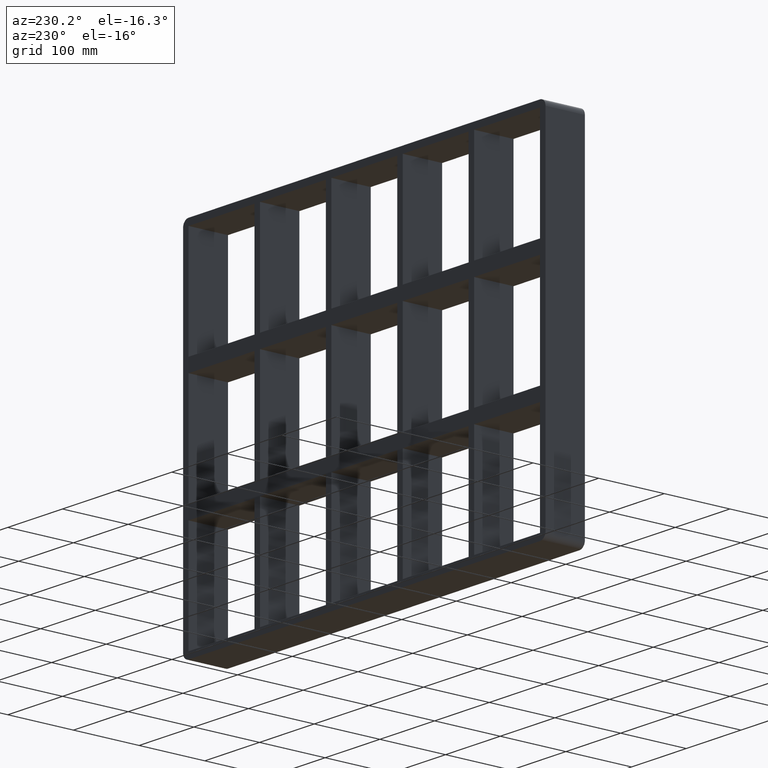
[diagram: clean part render]
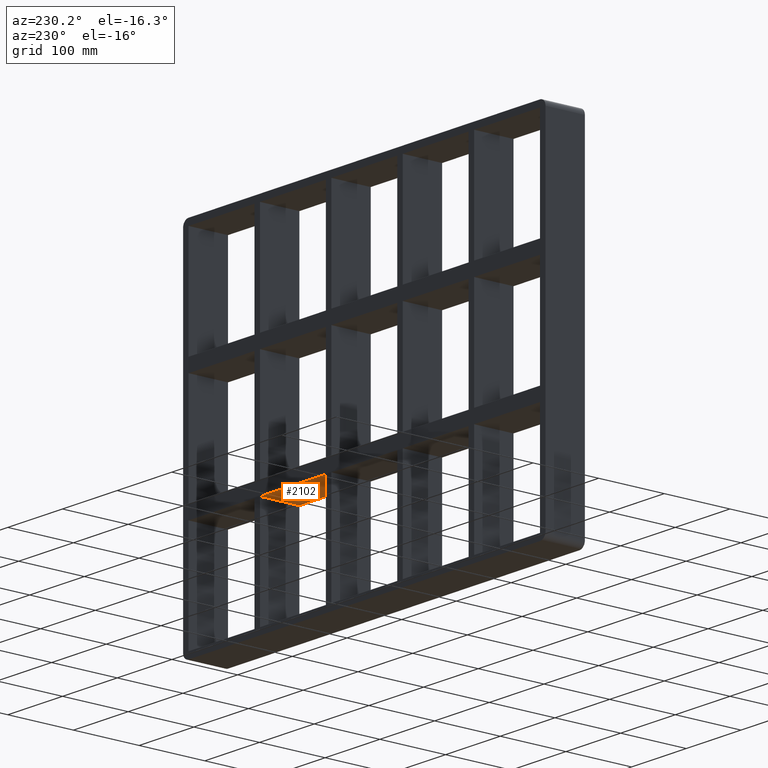
[diagram: same view with one face highlighted and labeled with its STEP entity id]
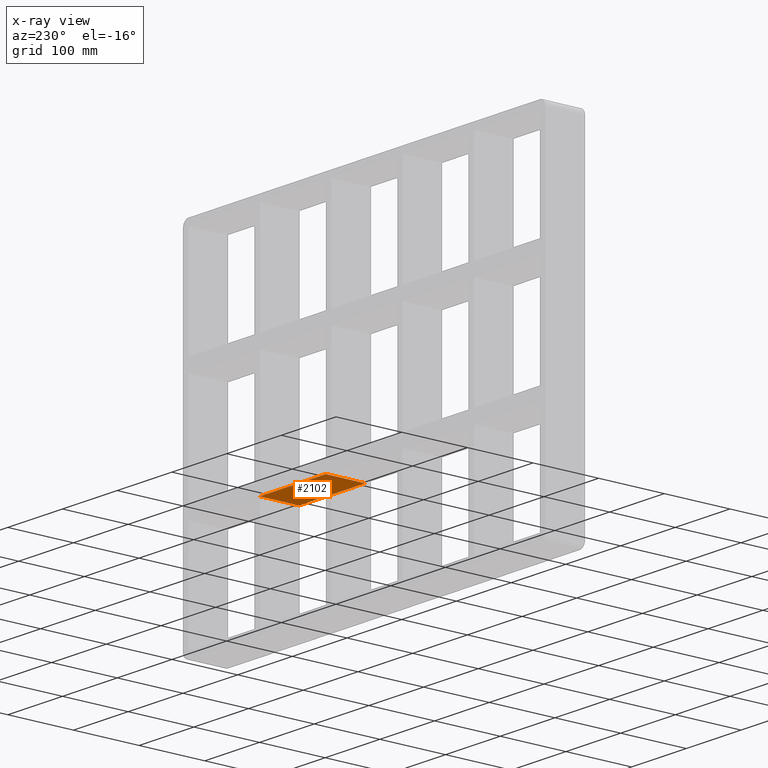
[diagram: x-ray of the same camera — body ghosted, the highlighted face saturated]
A machine part, auxiliary view. The second image highlights one B-rep face of the part: STEP entity #2102.
The next image is the same camera in x-ray: the body ghosted, the highlighted face saturated — about 1% of this face is hidden behind the body in this view.
In plain terms, the highlighted planar face has unit normal (0, 0, -1).
Its self-contained STEP definition (entity closure, byte-faithful):
#1174=CARTESIAN_POINT('',(190.74999999999872,57.0,-99.750000000009294));
#1175=VERTEX_POINT('',#1174);
#1182=CARTESIAN_POINT('',(70.249999999992738,57.0,-99.750000000009251));
#1183=VERTEX_POINT('',#1182);
#1184=CARTESIAN_POINT('',(190.74999999999872,57.0,-99.75000000000928));
#1185=DIRECTION('',(-1.0,0.0,0.0));
#1186=VECTOR('',#1185,120.500000000006);
#1187=LINE('',#1184,#1186);
#1188=EDGE_CURVE('',#1175,#1183,#1187,.T.);
#1281=CARTESIAN_POINT('',(190.74999999999872,-3.0,-99.750000000009294));
#1282=VERTEX_POINT('',#1281);
#1283=CARTESIAN_POINT('',(190.74999999999875,57.0,-99.750000000009294));
#1284=DIRECTION('',(0.0,-1.0,0.0));
#1285=VECTOR('',#1284,60.0);
#1286=LINE('',#1283,#1285);
#1287=EDGE_CURVE('',#1175,#1282,#1286,.T.);
#1446=CARTESIAN_POINT('',(70.249999999992738,-3.0,-99.750000000009251));
#1447=VERTEX_POINT('',#1446);
#1448=CARTESIAN_POINT('',(70.249999999992738,-3.0,-99.750000000009294));
#1449=DIRECTION('',(0.0,1.0,0.0));
#1450=VECTOR('',#1449,60.0);
#1451=LINE('',#1448,#1450);
#1452=EDGE_CURVE('',#1447,#1183,#1451,.T.);
#1865=CARTESIAN_POINT('',(190.74999999999872,-3.0,-99.75000000000928));
#1866=DIRECTION('',(-1.0,0.0,0.0));
#1867=VECTOR('',#1866,120.500000000006);
#1868=LINE('',#1865,#1867);
#1869=EDGE_CURVE('',#1282,#1447,#1868,.T.);
#2091=CARTESIAN_POINT('',(321.25,-3.0,-99.750000000009265));
#2092=DIRECTION('',(0.0,0.0,-1.0));
#2093=DIRECTION('',(-1.0,0.0,0.0));
#2094=AXIS2_PLACEMENT_3D('',#2091,#2092,#2093);
#2095=PLANE('',#2094);
#2096=ORIENTED_EDGE('',*,*,#1287,.T.);
#2097=ORIENTED_EDGE('',*,*,#1869,.T.);
#2098=ORIENTED_EDGE('',*,*,#1452,.T.);
#2099=ORIENTED_EDGE('',*,*,#1188,.F.);
#2100=EDGE_LOOP('',(#2096,#2097,#2098,#2099));
#2101=FACE_OUTER_BOUND('',#2100,.T.);
#2102=ADVANCED_FACE('',(#2101),#2095,.T.);